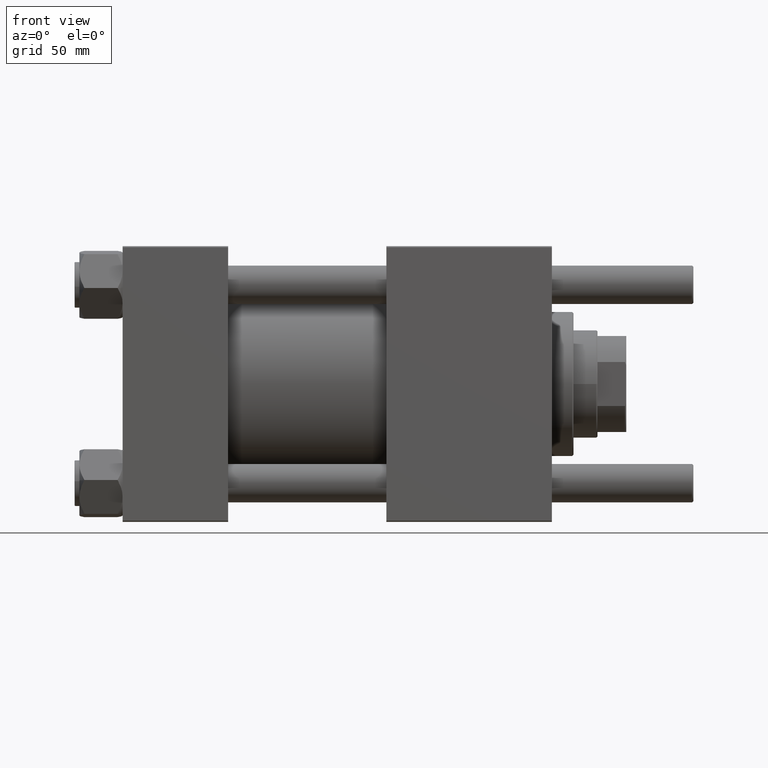
[diagram: clean part render]
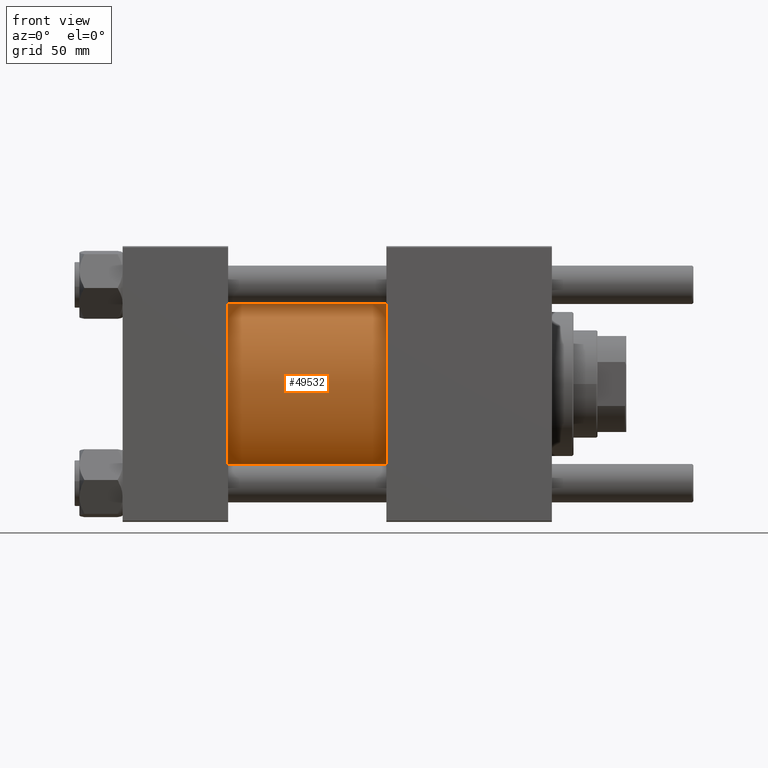
[diagram: same view with one face highlighted and labeled with its STEP entity id]
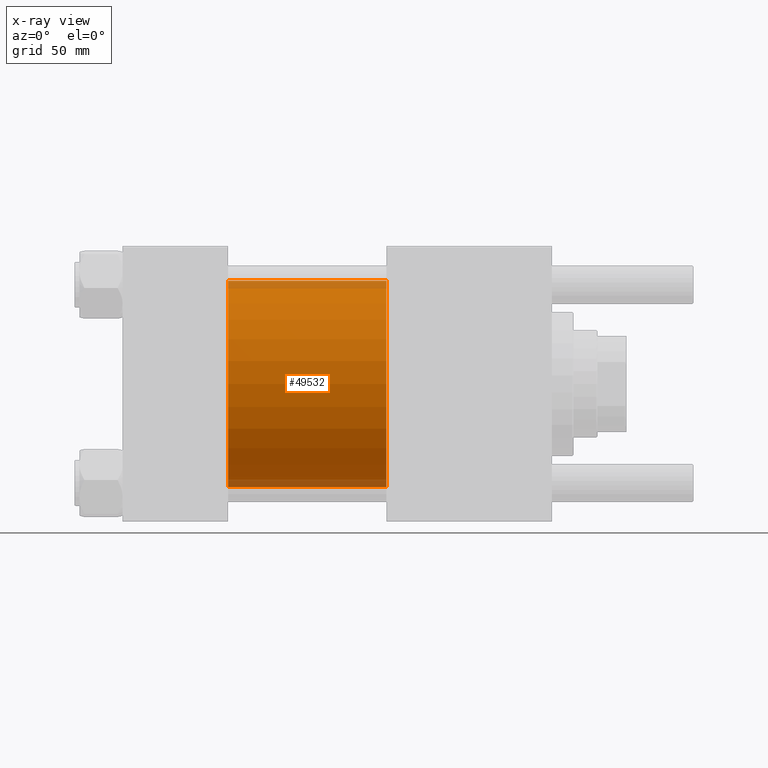
[diagram: x-ray of the same camera — body ghosted, the highlighted face saturated]
A machine part, front view. The second image highlights one B-rep face of the part: STEP entity #49532.
The next image is the same camera in x-ray: the body ghosted, the highlighted face saturated — about 8% of this face is hidden behind the body in this view.
In plain terms, the highlighted cylindrical surface (partial cylindrical patch) has radius 43 mm, axis along (-1, -0, -0).
Its self-contained STEP definition (entity closure, byte-faithful):
#1379 = CARTESIAN_POINT ( 'NONE',  ( 110.0000000000000000, 2.663896022368408223E-15, -43.00000000000000000 ) ) ;
#3899 = CARTESIAN_POINT ( 'NONE',  ( 110.0000000000000000, 2.663896022368408223E-15, -43.00000000000000000 ) ) ;
#4168 = VERTEX_POINT ( 'NONE', #9806 ) ;
#5199 = DIRECTION ( 'NONE',  ( -1.000000000000000000, -0.000000000000000000, -0.000000000000000000 ) ) ;
#5240 = VECTOR ( 'NONE', #25456, 1000.000000000000000 ) ;
#6338 = CARTESIAN_POINT ( 'NONE',  ( 110.0000000000000000, -2.602085213965210642E-15, 0.000000000000000000 ) ) ;
#7851 = CARTESIAN_POINT ( 'NONE',  ( 110.0000000000000000, -2.602085213965210642E-15, 43.00000000000000000 ) ) ;
#9806 = CARTESIAN_POINT ( 'NONE',  ( 110.0000000000000000, -2.602085213965210642E-15, 43.00000000000000000 ) ) ;
#10731 = EDGE_LOOP ( 'NONE', ( #43562, #16166, #19244, #38647 ) ) ;
#11781 = CARTESIAN_POINT ( 'NONE',  ( 110.0000000000000000, -2.602085213965210642E-15, 0.000000000000000000 ) ) ;
#13327 = VERTEX_POINT ( 'NONE', #15329 ) ;
#13666 = CIRCLE ( 'NONE', #54256, 43.00000000000000000 ) ;
#14918 = VERTEX_POINT ( 'NONE', #29212 ) ;
#14979 = EDGE_CURVE ( 'NONE', #4168, #13327, #47433, .T. ) ;
#15329 = CARTESIAN_POINT ( 'NONE',  ( 44.00000000000000000, -2.602085213965210642E-15, 43.00000000000000000 ) ) ;
#15895 = CARTESIAN_POINT ( 'NONE',  ( 44.00000000000000000, -2.602085213965210642E-15, 0.000000000000000000 ) ) ;
#16166 = ORIENTED_EDGE ( 'NONE', *, *, #31355, .F. ) ;
#19244 = ORIENTED_EDGE ( 'NONE', *, *, #14979, .T. ) ;
#19566 = DIRECTION ( 'NONE',  ( -1.000000000000000000, -0.000000000000000000, -0.000000000000000000 ) ) ;
#20714 = DIRECTION ( 'NONE',  ( 1.000000000000000000, 0.000000000000000000, 0.000000000000000000 ) ) ;
#22818 = DIRECTION ( 'NONE',  ( 0.000000000000000000, 0.000000000000000000, 1.000000000000000000 ) ) ;
#23068 = AXIS2_PLACEMENT_3D ( 'NONE', #6338, #5199, #22818 ) ;
#23265 = EDGE_CURVE ( 'NONE', #13327, #14918, #13666, .T. ) ;
#25456 = DIRECTION ( 'NONE',  ( -1.000000000000000000, -0.000000000000000000, -0.000000000000000000 ) ) ;
#27719 = FACE_OUTER_BOUND ( 'NONE', #10731, .T. ) ;
#29212 = CARTESIAN_POINT ( 'NONE',  ( 44.00000000000000000, 2.663896022368408223E-15, -43.00000000000000000 ) ) ;
#31355 = EDGE_CURVE ( 'NONE', #4168, #40801, #36482, .T. ) ;
#33081 = VECTOR ( 'NONE', #19566, 1000.000000000000000 ) ;
#33503 = DIRECTION ( 'NONE',  ( 0.000000000000000000, 0.000000000000000000, 1.000000000000000000 ) ) ;
#36482 = CIRCLE ( 'NONE', #44766, 43.00000000000000000 ) ;
#38344 = DIRECTION ( 'NONE',  ( 0.000000000000000000, 0.000000000000000000, -1.000000000000000000 ) ) ;
#38647 = ORIENTED_EDGE ( 'NONE', *, *, #23265, .T. ) ;
#40801 = VERTEX_POINT ( 'NONE', #3899 ) ;
#43562 = ORIENTED_EDGE ( 'NONE', *, *, #45512, .F. ) ;
#44766 = AXIS2_PLACEMENT_3D ( 'NONE', #11781, #20714, #38344 ) ;
#44779 = CYLINDRICAL_SURFACE ( 'NONE', #23068, 43.00000000000000000 ) ;
#45512 = EDGE_CURVE ( 'NONE', #40801, #14918, #53995, .T. ) ;
#46237 = DIRECTION ( 'NONE',  ( 1.000000000000000000, -0.000000000000000000, 0.000000000000000000 ) ) ;
#47433 = LINE ( 'NONE', #7851, #5240 ) ;
#49532 = ADVANCED_FACE ( 'NONE', ( #27719 ), #44779, .T. ) ;
#53995 = LINE ( 'NONE', #1379, #33081 ) ;
#54256 = AXIS2_PLACEMENT_3D ( 'NONE', #15895, #46237, #33503 ) ;